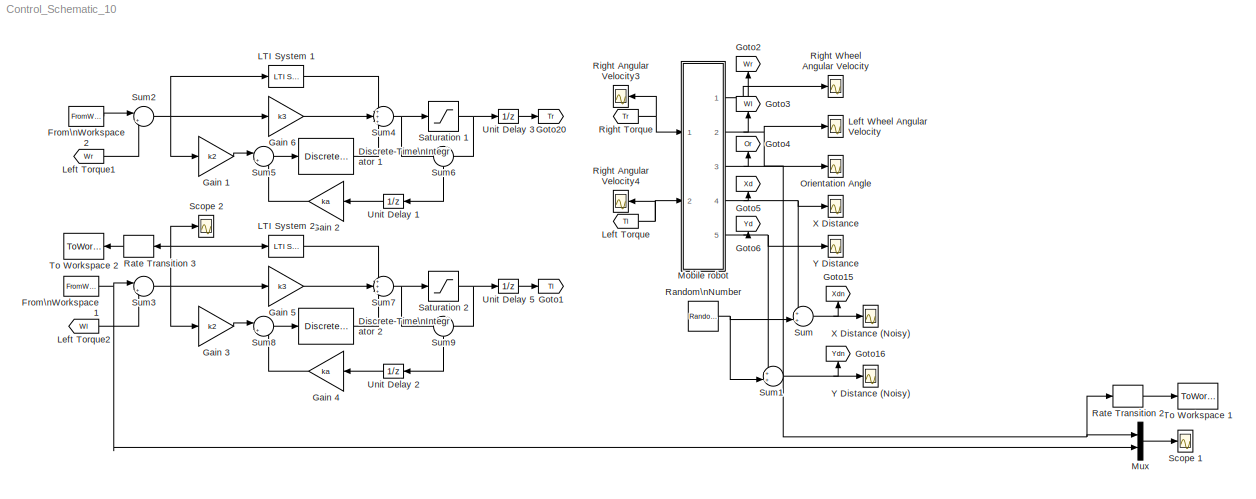
MODEL Control_Schematic_10
KIND model
BLOCK [DiscreteIntegrator] Discrete-Time\nIntegrator 1
  ICPrevOutput = DiscIntNeverNeededParam
  ICPrevScaledInput = DiscIntNeverNeededParam
  IntegratorMethod = Integration: Trapezoidal
  Ports = [1, 1]
  SID = 5204
  SampleTime = Ts
BLOCK [DiscreteIntegrator] Discrete-Time\nIntegrator 2
  ICPrevOutput = DiscIntNeverNeededParam
  ICPrevScaledInput = DiscIntNeverNeededParam
  IntegratorMethod = Integration: Trapezoidal
  Ports = [1, 1]
  SID = 5208
  SampleTime = Ts
BLOCK [FromWorkspace] From\nWorkspace 1
  Interpolate = off
  OutputAfterFinalValue = Holding final value
  SID = 5304
  SampleTime = Ts
  VariableName = prbs
  ZeroCross = on
BLOCK [FromWorkspace] From\nWorkspace 2
  Interpolate = off
  OutputAfterFinalValue = Holding final value
  SID = 5305
  SampleTime = Ts
  VariableName = prbs
  ZeroCross = on
BLOCK [Gain] Gain 1
  Gain = k2
  OutDataTypeStr = Inherit: Inherit via internal rule
  ParamDataTypeStr = Inherit: Inherit via internal rule
  SID = 5203
  SaturateOnIntegerOverflow = off
BLOCK [Gain] Gain 2
  Gain = ka
  OutDataTypeStr = Inherit: Inherit via internal rule
  ParamDataTypeStr = Inherit: Inherit via internal rule
  SID = 5207
  SaturateOnIntegerOverflow = off
BLOCK [Gain] Gain 3
  Gain = k2
  OutDataTypeStr = Inherit: Inherit via internal rule
  ParamDataTypeStr = Inherit: Inherit via internal rule
  SID = 5209
  SaturateOnIntegerOverflow = off
BLOCK [Gain] Gain 4
  Gain = ka
  OutDataTypeStr = Inherit: Inherit via internal rule
  ParamDataTypeStr = Inherit: Inherit via internal rule
  SID = 5210
  SaturateOnIntegerOverflow = off
BLOCK [Gain] Gain 5
  Gain = k3
  OutDataTypeStr = Inherit: Inherit via internal rule
  ParamDataTypeStr = Inherit: Inherit via internal rule
  SID = 5222
  SaturateOnIntegerOverflow = off
BLOCK [Gain] Gain 6
  Gain = k3
  OutDataTypeStr = Inherit: Inherit via internal rule
  ParamDataTypeStr = Inherit: Inherit via internal rule
  SID = 5223
  SaturateOnIntegerOverflow = off
BLOCK [Goto] Goto1
  GotoTag = Tl
  SID = 5211
  TagVisibility = global
BLOCK [Goto] Goto15
  GotoTag = Xdn
  SID = 1590
  TagVisibility = global
BLOCK [Goto] Goto16
  GotoTag = Ydn
  SID = 1591
  TagVisibility = global
BLOCK [Goto] Goto2
  GotoTag = Wr
  SID = 30
  TagVisibility = global
BLOCK [Goto] Goto20
  GotoTag = Tr
  SID = 5191
  TagVisibility = global
BLOCK [Goto] Goto3
  GotoTag = Wl
  SID = 31
  TagVisibility = global
BLOCK [Goto] Goto4
  GotoTag = Or
  SID = 32
  TagVisibility = global
BLOCK [Goto] Goto5
  GotoTag = Xd
  SID = 33
  TagVisibility = global
BLOCK [Goto] Goto6
  GotoTag = Yd
  SID = 34
  TagVisibility = global
BLOCK [Reference] LTI System 1  REF=cstblocks/LTI System
  IC = []
  Ports = [1, 1]
  SID = 5300
  SourceBlock = cstblocks/LTI System
  SourceType = LTI Block
  sys = k1z
BLOCK [Reference] LTI System 2  REF=cstblocks/LTI System
  IC = []
  Ports = [1, 1]
  SID = 5303
  SourceBlock = cstblocks/LTI System
  SourceType = LTI Block
  sys = k1z
BLOCK [From] Left Torque
  GotoTag = Tl
  SID = 25
  TagVisibility = global
BLOCK [From] Left Torque1
  GotoTag = Wr
  SID = 5190
  TagVisibility = global
BLOCK [From] Left Torque2
  GotoTag = Wl
  SID = 5213
  TagVisibility = global
BLOCK [Scope] Left Wheel Angular Velocity
  Floating = off
  LimitDataPoints = off
  NumInputPorts = 1
  Ports = [1]
  SID = 2
  SaveName = ScopeData2
  ShowLegends = off
  YMax = 2
  YMin = -1
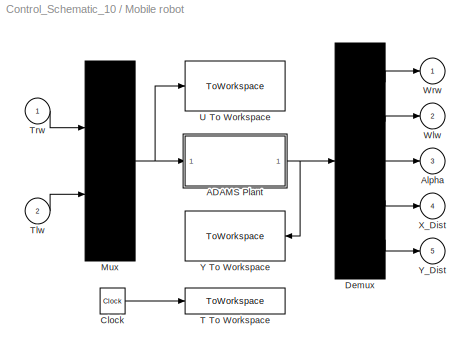
BLOCK [SubSystem] Mobile robot
  Ports = [2, 5]
  RequestExecContextInheritance = off
  SID = 4919
  ShowPortLabels = none
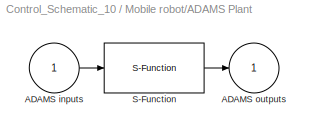
BLOCK [SubSystem] Mobile robot/ADAMS Plant
  InitFcn = clear mex
  LoadFcn = %check based on dialog box setting for when setting by popup menu                                             \nif exist('ADAMS_solver_type')                                                                                 \n  if strcmp(ADAMS_solver_type,'C++')                                                                          \n    set_param(gcb,'exetyp','C++');                              ...<+3523ch>
  OpenFcn = open_system(gcb,'mask')                                                                                                                          \nif not(exist('set_some_params_states'))                                                                                                          \n                                                                                                          ...<+634ch>
  Ports = [1, 1]
  RequestExecContextInheritance = off
  SID = 4922
BLOCK [Inport] Mobile robot/ADAMS Plant/ADAMS inputs
  IconDisplay = Port number
  SID = 4923
BLOCK [Outport] Mobile robot/ADAMS Plant/ADAMS outputs
  IconDisplay = Port number
  InitialOutput = 0
  SID = 4925
BLOCK [S-Function] Mobile robot/ADAMS Plant/S-Function
  EnableBusSupport = off
  FunctionName = adams_plant
  Parameters = exevie,exesol,stat,outfil,nampre,o_rate,nam_in,namout,dft,modsim,modani,dt_out,inicmd,exetyp,comtyp,ada_host, workdir,pin_interp_order,pout_extrap_order,pin_extrap_order,pout_interp_order,simulink_lead_cosim
  Ports = [1, 1]
  SID = 4924
  StopFcn = clear mex
BLOCK [Outport] Mobile robot/Alpha
  IconDisplay = Port number
  Port = 3
  SID = 4934
BLOCK [Clock] Mobile robot/Clock
  SID = 4926
BLOCK [Demux] Mobile robot/Demux
  Outputs = 5
  Ports = [1, 5]
  SID = 4927
BLOCK [Mux] Mobile robot/Mux
  Inputs = 2
  Ports = [2, 1]
  SID = 4928
BLOCK [ToWorkspace] Mobile robot/T To Workspace
  MaxDataPoints = 100000
  Ports = [1]
  SID = 4929
  VariableName = ADAMS_tout
BLOCK [Inport] Mobile robot/Tlw
  IconDisplay = Port number
  Port = 2
  SID = 4921
BLOCK [Inport] Mobile robot/Trw
  IconDisplay = Port number
  SID = 4920
BLOCK [ToWorkspace] Mobile robot/U To Workspace
  MaxDataPoints = 100000
  Ports = [1]
  SID = 4930
  VariableName = ADAMS_uout
BLOCK [Outport] Mobile robot/Wlw
  IconDisplay = Port number
  Port = 2
  SID = 4933
BLOCK [Outport] Mobile robot/Wrw
  IconDisplay = Port number
  SID = 4932
BLOCK [Outport] Mobile robot/X_Dist
  IconDisplay = Port number
  Port = 4
  SID = 4935
BLOCK [ToWorkspace] Mobile robot/Y To Workspace
  MaxDataPoints = 100000
  Ports = [1]
  SID = 4931
  VariableName = ADAMS_yout
BLOCK [Outport] Mobile robot/Y_Dist
  IconDisplay = Port number
  Port = 5
  SID = 4936
BLOCK [Mux] Mux
  DisplayOption = bar
  Inputs = 2
  Ports = [2, 1]
  SID = 5226
BLOCK [Scope] Orientation Angle
  Floating = off
  LimitDataPoints = off
  NumInputPorts = 1
  Ports = [1]
  SID = 1
  SaveName = ScopeData1
  ShowLegends = off
  YMax = 4
  YMin = -4
BLOCK [RandomNumber] Random\nNumber
  SID = 1582
  Seed = 6
  Variance = .01
BLOCK [RateTransition] Rate Transition 2
  OutPortSampleTime = To
  SID = 5293
BLOCK [RateTransition] Rate Transition 3
  OutPortSampleTime = To
  SID = 5294
BLOCK [Scope] Right Angular Velocity3
  Floating = off
  LimitDataPoints = off
  NumInputPorts = 1
  Ports = [1]
  SID = 269
  SaveName = ScopeData7
  ShowLegends = off
  YMax = 25
  YMin = -25
  ZoomMode = xonly
BLOCK [Scope] Right Angular Velocity4
  Floating = off
  LimitDataPoints = off
  NumInputPorts = 1
  Ports = [1]
  SID = 270
  SaveName = ScopeData8
  ShowLegends = off
  YMax = 25
  YMin = -25
  ZoomMode = xonly
BLOCK [From] Right Torque
  GotoTag = Tr
  SID = 24
  TagVisibility = global
BLOCK [Scope] Right Wheel Angular Velocity
  Floating = off
  LimitDataPoints = off
  NumInputPorts = 1
  Ports = [1]
  SID = 3
  SaveName = ScopeData3
  ShowLegends = off
  ZoomMode = xonly
BLOCK [Saturate] Saturation 1
  InputPortMap = u0
  LowerLimit = -15
  Ports = [1, 1]
  SID = 5199
  UpperLimit = 15
BLOCK [Saturate] Saturation 2
  InputPortMap = u0
  LowerLimit = -15
  Ports = [1, 1]
  SID = 5215
  UpperLimit = 15
BLOCK [Scope] Scope 1
  Floating = off
  LimitDataPoints = off
  NumInputPorts = 1
  Ports = [1]
  SID = 5227
  SaveName = ScopeData5
  ShowLegends = off
  YMax = 3
  YMin = -3
  ZoomMode = xonly
BLOCK [Scope] Scope 2
  Floating = off
  LimitDataPoints = off
  NumInputPorts = 1
  Ports = [1]
  SID = 5249
  SaveName = ScopeData6
  ShowLegends = off
  YMax = 3
  YMin = -3
BLOCK [Sum] Sum
  IconShape = round
  InputSameDT = off
  Inputs = ++|
  OutDataTypeStr = Inherit: Inherit via internal rule
  Ports = [2, 1]
  SID = 1584
  SaturateOnIntegerOverflow = off
BLOCK [Sum] Sum1
  IconShape = round
  InputSameDT = off
  Inputs = ++|
  OutDataTypeStr = Inherit: Inherit via internal rule
  Ports = [2, 1]
  SID = 1585
  SaturateOnIntegerOverflow = off
BLOCK [Sum] Sum2
  IconShape = round
  InputSameDT = off
  Inputs = |+-
  OutDataTypeStr = Inherit: Inherit via internal rule
  Ports = [2, 1]
  SID = 5192
  SaturateOnIntegerOverflow = off
BLOCK [Sum] Sum3
  IconShape = round
  InputSameDT = off
  Inputs = |+-
  OutDataTypeStr = Inherit: Inherit via internal rule
  Ports = [2, 1]
  SID = 5216
  SaturateOnIntegerOverflow = off
BLOCK [Sum] Sum4
  IconShape = round
  InputSameDT = off
  Inputs = +++
  OutDataTypeStr = Inherit: Inherit via internal rule
  Ports = [3, 1]
  SID = 5202
  SaturateOnIntegerOverflow = off
BLOCK [Sum] Sum5
  IconShape = round
  InputSameDT = off
  Inputs = |++
  OutDataTypeStr = Inherit: Inherit via internal rule
  Ports = [2, 1]
  SID = 5205
  SaturateOnIntegerOverflow = off
BLOCK [Sum] Sum6
  IconShape = round
  InputSameDT = off
  Inputs = -+
  OutDataTypeStr = Inherit: Inherit via internal rule
  Ports = [2, 1]
  SID = 5206
  SaturateOnIntegerOverflow = off
BLOCK [Sum] Sum7
  IconShape = round
  InputSameDT = off
  Inputs = +++
  OutDataTypeStr = Inherit: Inherit via internal rule
  Ports = [3, 1]
  SID = 5217
  SaturateOnIntegerOverflow = off
BLOCK [Sum] Sum8
  IconShape = round
  InputSameDT = off
  Inputs = |++
  OutDataTypeStr = Inherit: Inherit via internal rule
  Ports = [2, 1]
  SID = 5218
  SaturateOnIntegerOverflow = off
BLOCK [Sum] Sum9
  IconShape = round
  InputSameDT = off
  Inputs = -+
  OutDataTypeStr = Inherit: Inherit via internal rule
  Ports = [2, 1]
  SID = 5219
  SaturateOnIntegerOverflow = off
BLOCK [ToWorkspace] To Workspace 1
  FixptAsFi = on
  MaxDataPoints = inf
  Ports = [1]
  SID = 5258
  SampleTime = -1
  Save2DSignal = 3-D array (concatenate along third dimension)
  SaveFormat = Structure With Time
  VariableName = output
BLOCK [ToWorkspace] To Workspace 2
  FixptAsFi = on
  MaxDataPoints = inf
  Ports = [1]
  SID = 5259
  SampleTime = -1
  Save2DSignal = 3-D array (concatenate along third dimension)
  SaveFormat = Structure With Time
  VariableName = input
BLOCK [UnitDelay] Unit Delay 1
  InputProcessing = Elements as channels (sample based)
  SID = 5220
  SampleTime = -1
BLOCK [UnitDelay] Unit Delay 2
  InputProcessing = Elements as channels (sample based)
  SID = 5221
  SampleTime = -1
BLOCK [UnitDelay] Unit Delay 3
  InputProcessing = Elements as channels (sample based)
  SID = 5299
  SampleTime = -1
BLOCK [UnitDelay] Unit Delay 5
  InputProcessing = Elements as channels (sample based)
  SID = 5298
  SampleTime = -1
BLOCK [Scope] X Distance
  Floating = off
  LimitDataPoints = off
  NumInputPorts = 1
  Ports = [1]
  SID = 4
  SaveName = ScopeData4
  ShowLegends = off
  YMax = 3000
  YMin = 0
  ZoomMode = yonly
BLOCK [Scope] X Distance (Noisy)
  Floating = off
  LimitDataPoints = off
  NumInputPorts = 1
  Ports = [1]
  SID = 1586
  SaveName = ScopeData19
  ShowLegends = off
  YMax = 2600
  YMin = 0
BLOCK [Scope] Y Distance
  Floating = off
  LimitDataPoints = off
  NumInputPorts = 1
  Ports = [1]
  SID = 5
  ShowLegends = off
  YMax = 5000
  YMin = 0
  ZoomMode = yonly
BLOCK [Scope] Y Distance (Noisy)
  Floating = off
  LimitDataPoints = off
  NumInputPorts = 1
  Ports = [1]
  SID = 1587
  SaveName = ScopeData21
  ShowLegends = off
  YMax = 2600
  YMin = 0
LINE Discrete-Time\nIntegrator 1:1 -> Sum4:3
LINE Discrete-Time\nIntegrator 2:1 -> Sum7:3
NET From\nWorkspace 1:1 -> Mux:2, Sum3:1
LINE From\nWorkspace 2:1 -> Sum2:1
LINE Gain 1:1 -> Sum5:1
LINE Gain 2:1 -> Sum5:2
LINE Gain 3:1 -> Sum8:1
LINE Gain 4:1 -> Sum8:2
LINE Gain 5:1 -> Sum7:2
LINE Gain 6:1 -> Sum4:2
LINE LTI System 1:1 -> Sum4:1
LINE LTI System 2:1 -> Sum7:1
LINE Left Torque1:1 -> Sum2:2
LINE Left Torque2:1 -> Sum3:2
NET Left Torque:1 -> Mobile robot:2, Right Angular Velocity4:1
LINE Mobile robot/ADAMS Plant/ADAMS inputs:1 -> Mobile robot/ADAMS Plant/S-Function:1
LINE Mobile robot/ADAMS Plant/S-Function:1 -> Mobile robot/ADAMS Plant/ADAMS outputs:1
NET Mobile robot/ADAMS Plant:1 -> Mobile robot/Demux:1, Mobile robot/Y To Workspace:1
LINE Mobile robot/Clock:1 -> Mobile robot/T To Workspace:1
LINE Mobile robot/Demux:1 -> Mobile robot/Wrw:1
LINE Mobile robot/Demux:2 -> Mobile robot/Wlw:1
LINE Mobile robot/Demux:3 -> Mobile robot/Alpha:1
LINE Mobile robot/Demux:4 -> Mobile robot/X_Dist:1
LINE Mobile robot/Demux:5 -> Mobile robot/Y_Dist:1
NET Mobile robot/Mux:1 -> Mobile robot/ADAMS Plant:1, Mobile robot/U To Workspace:1
LINE Mobile robot/Tlw:1 -> Mobile robot/Mux:2
LINE Mobile robot/Trw:1 -> Mobile robot/Mux:1
NET Mobile robot:1 -> Goto2:1, Right Wheel Angular Velocity:1
NET Mobile robot:2 -> Goto3:1, Left Wheel Angular Velocity:1, Mux:1, Rate Transition 2:1
NET Mobile robot:3 -> Goto4:1, Orientation Angle:1
NET Mobile robot:4 -> Goto5:1, Sum:1, X Distance:1
NET Mobile robot:5 -> Goto6:1, Sum1:1, Y Distance:1
LINE Mux:1 -> Scope 1:1
NET Random\nNumber:1 -> Sum1:2, Sum:2
LINE Rate Transition 2:1 -> To Workspace 1:1
LINE Rate Transition 3:1 -> To Workspace 2:1
NET Right Torque:1 -> Mobile robot:1, Right Angular Velocity3:1
NET Saturation 1:1 -> Sum6:2, Unit Delay 3:1
NET Saturation 2:1 -> Sum9:2, Unit Delay 5:1
NET Sum1:1 -> Goto16:1, Y Distance (Noisy):1
NET Sum2:1 -> Gain 1:1, Gain 6:1, LTI System 1:1
NET Sum3:1 -> Gain 3:1, Gain 5:1, LTI System 2:1, Rate Transition 3:1, Scope 2:1
NET Sum4:1 -> Saturation 1:1, Sum6:1
LINE Sum5:1 -> Discrete-Time\nIntegrator 1:1
LINE Sum6:1 -> Unit Delay 1:1
NET Sum7:1 -> Saturation 2:1, Sum9:1
LINE Sum8:1 -> Discrete-Time\nIntegrator 2:1
LINE Sum9:1 -> Unit Delay 2:1
NET Sum:1 -> Goto15:1, X Distance (Noisy):1
LINE Unit Delay 1:1 -> Gain 2:1
LINE Unit Delay 2:1 -> Gain 4:1
LINE Unit Delay 3:1 -> Goto20:1
LINE Unit Delay 5:1 -> Goto1:1
note: NET lines group one-source signal fan-out (src -> all destinations, sorted); 1:1 wires keep LINE
